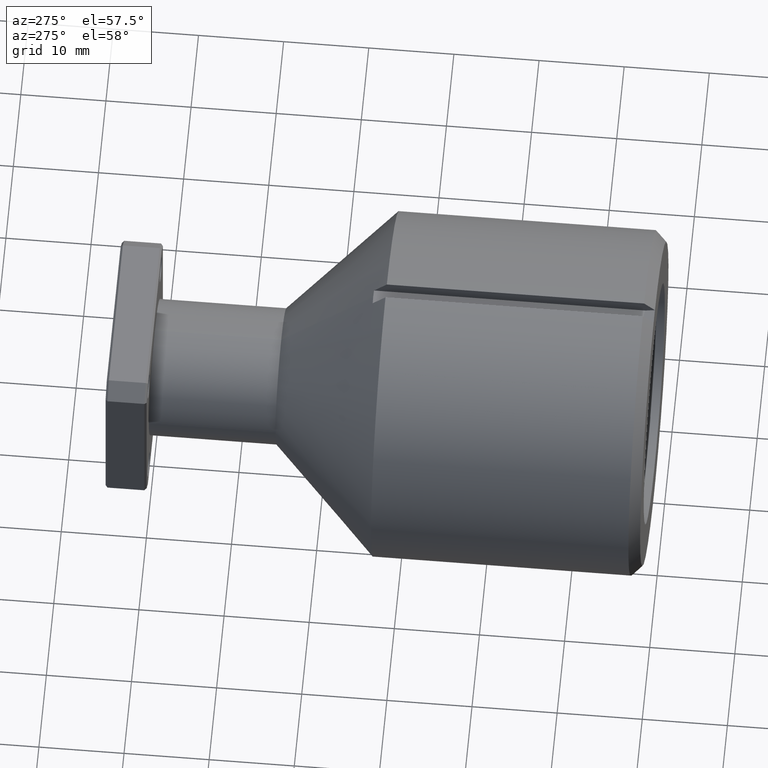
[diagram: clean part render]
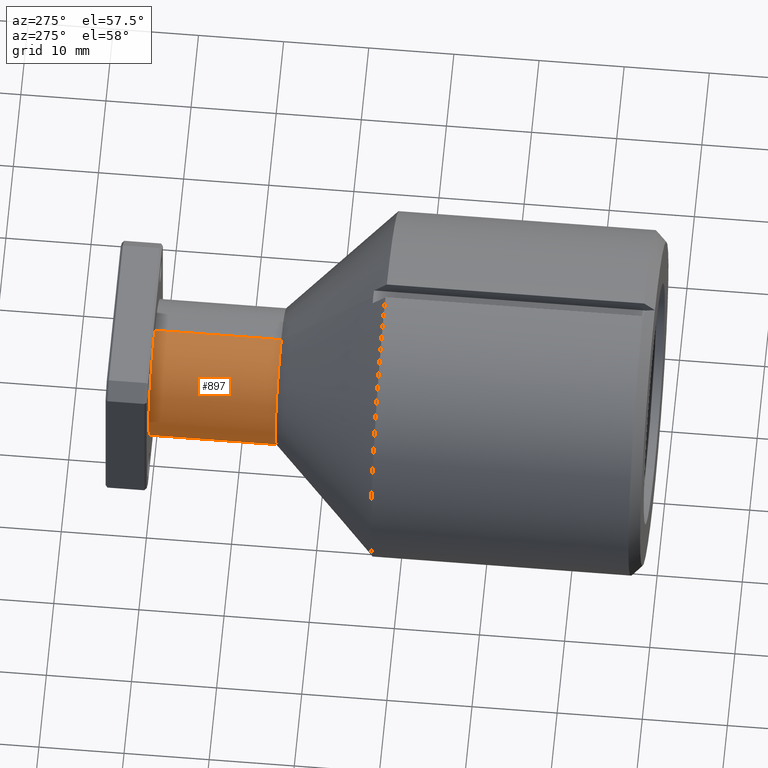
[diagram: same view with one face highlighted and labeled with its STEP entity id]
A machine part, auxiliary view. The second image highlights one B-rep face of the part: STEP entity #897.
In plain terms, the highlighted cylindrical surface (partial cylindrical patch) has radius 8.001 mm, axis along (-0, -1, -0).
Its self-contained STEP definition (entity closure, byte-faithful):
#58 = AXIS2_PLACEMENT_3D ( 'NONE', #1235, #273, #497 ) ;
#143 = DIRECTION ( 'NONE',  ( -0.000000000000000000, -1.000000000000000000, -0.000000000000000000 ) ) ;
#202 = CYLINDRICAL_SURFACE ( 'NONE', #525, 0.3150000000000000577 ) ;
#209 = CARTESIAN_POINT ( 'NONE',  ( 3.857637417314163305E-17, -1.133357296908698908, 2.134996395338603747 ) ) ;
#239 = EDGE_LOOP ( 'NONE', ( #1374, #672, #344, #643 ) ) ;
#273 = DIRECTION ( 'NONE',  ( -0.000000000000000000, -1.000000000000000000, -0.000000000000000000 ) ) ;
#318 = FACE_OUTER_BOUND ( 'NONE', #239, .T. ) ;
#341 = CARTESIAN_POINT ( 'NONE',  ( 3.857637417314163305E-17, 0.5916873671862683537, 2.134996395338603747 ) ) ;
#344 = ORIENTED_EDGE ( 'NONE', *, *, #904, .T. ) ;
#475 = DIRECTION ( 'NONE',  ( 0.000000000000000000, 0.000000000000000000, -1.000000000000000000 ) ) ;
#497 = DIRECTION ( 'NONE',  ( 0.000000000000000000, 0.000000000000000000, -1.000000000000000000 ) ) ;
#513 = EDGE_CURVE ( 'NONE', #1553, #1139, #927, .T. ) ;
#525 = AXIS2_PLACEMENT_3D ( 'NONE', #1386, #1155, #788 ) ;
#643 = ORIENTED_EDGE ( 'NONE', *, *, #1292, .F. ) ;
#649 = VERTEX_POINT ( 'NONE', #1199 ) ;
#672 = ORIENTED_EDGE ( 'NONE', *, *, #1286, .T. ) ;
#674 = CARTESIAN_POINT ( 'NONE',  ( 0.000000000000000000, -1.133357296908698908, 1.504996395338603632 ) ) ;
#728 = AXIS2_PLACEMENT_3D ( 'NONE', #1452, #1102, #475 ) ;
#788 = DIRECTION ( 'NONE',  ( 0.000000000000000000, 0.000000000000000000, -1.000000000000000000 ) ) ;
#897 = ADVANCED_FACE ( 'NONE', ( #318 ), #202, .T. ) ;
#904 = EDGE_CURVE ( 'NONE', #649, #1436, #1269, .T. ) ;
#927 = LINE ( 'NONE', #209, #1274 ) ;
#988 = VECTOR ( 'NONE', #143, 39.37007874015748143 ) ;
#1037 = CARTESIAN_POINT ( 'NONE',  ( 0.000000000000000000, 0.5916873671862683537, 1.504996395338603632 ) ) ;
#1053 = DIRECTION ( 'NONE',  ( -0.000000000000000000, -1.000000000000000000, -0.000000000000000000 ) ) ;
#1102 = DIRECTION ( 'NONE',  ( -0.000000000000000000, -1.000000000000000000, -0.000000000000000000 ) ) ;
#1107 = CIRCLE ( 'NONE', #58, 0.3150000000000000577 ) ;
#1139 = VERTEX_POINT ( 'NONE', #341 ) ;
#1155 = DIRECTION ( 'NONE',  ( -0.000000000000000000, -1.000000000000000000, -0.000000000000000000 ) ) ;
#1199 = CARTESIAN_POINT ( 'NONE',  ( 0.000000000000000000, 1.176642703091300923, 1.504996395338603632 ) ) ;
#1235 = CARTESIAN_POINT ( 'NONE',  ( 0.000000000000000000, 0.5916873671862683537, 1.819996395338603579 ) ) ;
#1269 = LINE ( 'NONE', #674, #988 ) ;
#1274 = VECTOR ( 'NONE', #1053, 39.37007874015748143 ) ;
#1286 = EDGE_CURVE ( 'NONE', #1553, #649, #1488, .T. ) ;
#1292 = EDGE_CURVE ( 'NONE', #1139, #1436, #1107, .T. ) ;
#1300 = CARTESIAN_POINT ( 'NONE',  ( 3.857637417314163305E-17, 1.176642703091300923, 2.134996395338603747 ) ) ;
#1374 = ORIENTED_EDGE ( 'NONE', *, *, #513, .F. ) ;
#1386 = CARTESIAN_POINT ( 'NONE',  ( 0.000000000000000000, -1.133357296908698908, 1.819996395338603579 ) ) ;
#1436 = VERTEX_POINT ( 'NONE', #1037 ) ;
#1452 = CARTESIAN_POINT ( 'NONE',  ( 0.000000000000000000, 1.176642703091300923, 1.819996395338603579 ) ) ;
#1488 = CIRCLE ( 'NONE', #728, 0.3150000000000000577 ) ;
#1553 = VERTEX_POINT ( 'NONE', #1300 ) ;